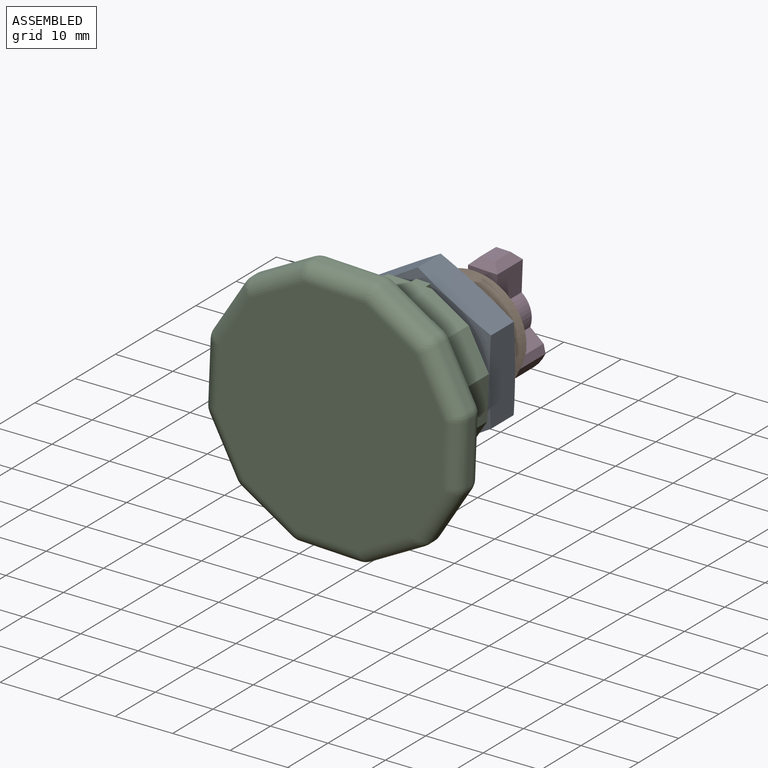
[diagram: assembled view]
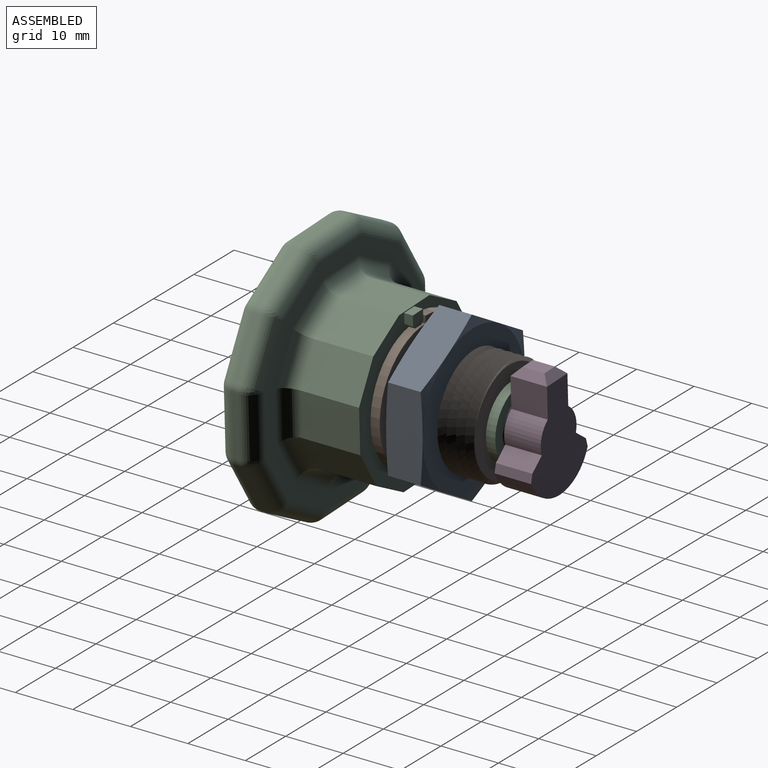
[diagram: assembled view, second angle]
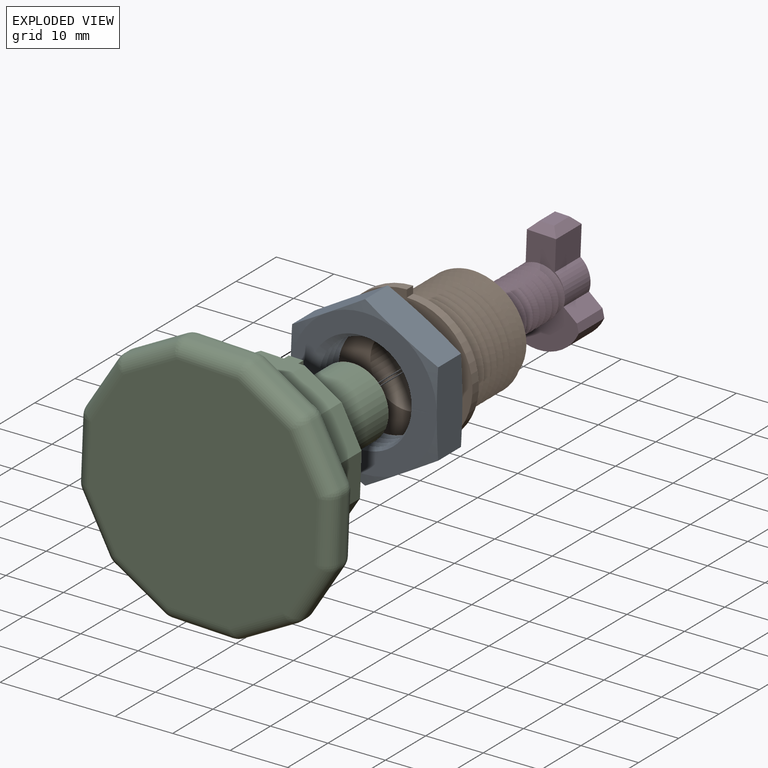
[diagram: exploded view]
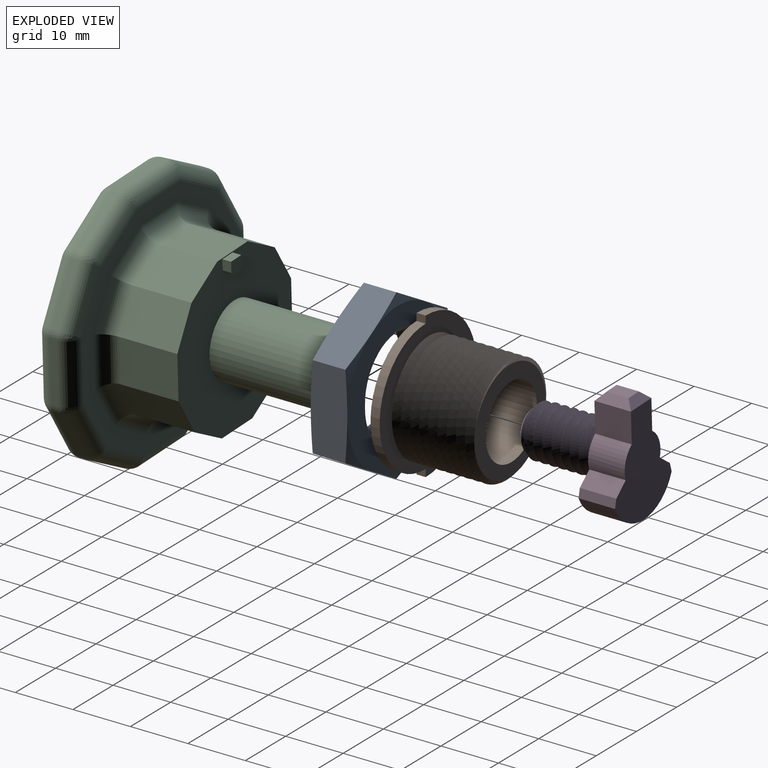
[diagram: exploded view, second angle]
ASSEMBLY  parts=4 mates=4
PART A: 23 faces, bbox 32.1x11.7x32.1 mm
  f0: cylinder r=8.29mm len=16.59mm, axis (0,1,0), area 7.3mm2, adj f1,f2,f21,f22
  f1: plane 28.13x28.13mm, normal (0,-1,0), area 253.5mm2, adj f0,f5,f6,f8,f10,f12,f14,f21
  f2: plane 25.4x25.4mm, normal (0,1,0), area 253.5mm2, adj f0,f3,f4,f7,f9,f11,f13,f21
  f3: cone r=17.23mm half-angle=80deg, axis (0,-1,0), area 14mm2, adj f2,f15,f20
  f4: cone r=17.23mm half-angle=80deg, axis (0,-1,0), area 14mm2, adj f2,f15,f16
  f5: cone r=17.23mm half-angle=80deg, axis (0,1,0), area 14mm2, adj f1,f15,f20
  f6: cone r=17.23mm half-angle=80deg, axis (0,1,0), area 14mm2, adj f1,f15,f16
  f7: cone r=17.23mm half-angle=80deg, axis (0,-1,0), area 14mm2, adj f2,f16,f17
  f8: cone r=17.23mm half-angle=80deg, axis (0,1,0), area 14mm2, adj f1,f16,f17
  f9: cone r=17.23mm half-angle=80deg, axis (0,-1,0), area 14mm2, adj f2,f17,f18
  f10: cone r=17.23mm half-angle=80deg, axis (0,1,0), area 14mm2, adj f1,f17,f18
  f11: cone r=17.23mm half-angle=80deg, axis (0,-1,0), area 14mm2, adj f2,f18,f19
  f12: cone r=17.23mm half-angle=80deg, axis (0,1,0), area 14mm2, adj f1,f18,f19
  f13: cone r=17.23mm half-angle=80deg, axis (0,-1,0), area 14mm2, adj f2,f19,f20
  f14: cone r=17.23mm half-angle=80deg, axis (0,1,0), area 14mm2, adj f1,f19,f20
  f15: plane 13.78x8.41mm, normal (0.5,0,0.87), area 89.6mm2, adj f3,f4,f5,f6,f16,f20
  f16: plane 15.74x7.43mm, normal (1,0,0), area 89.6mm2, adj f4,f6,f7,f8,f15,f17
  f17: plane 13.78x8.41mm, normal (0.5,0,-0.87), area 89.6mm2, adj f7,f8,f9,f10,f16,f18
  f18: plane 13.78x8.41mm, normal (-0.5,0,-0.87), area 89.6mm2, adj f9,f10,f11,f12,f17,f19
  f19: plane 15.74x7.43mm, normal (-1,0,0), area 89.6mm2, adj f11,f12,f13,f14,f18,f20
  f20: plane 13.78x8.41mm, normal (-0.5,0,0.87), area 89.6mm2, adj f3,f5,f13,f14,f15,f19
  f21: bspline ~19.51x19.51mm, area 286.6mm2, adj f0,f1,f2,f22
  f22: bspline ~19.51x19.51mm, area 355.2mm2, adj f0,f1,f2,f21
PART B: 12 faces, bbox 25.3x18.6x26.6 mm
  f0: cylinder r=6.35mm len=16.51mm, axis (0,-1,0), area 658.7mm2, adj f2,f10
  f1: cylinder r=9.53mm len=19.05mm, axis (0,-1,0), area 18mm2, adj f3,f4,f5,f11
  f2: plane 18.47x18.46mm, normal (0,1,0), area 118.3mm2, adj f0,f3,f4,f5
  f3: cone r=9.53mm half-angle=45deg, axis (0,-1,0), area 2.1mm2, adj f1,f2,f4,f5
  f4: bspline ~22x19.05mm, area 821.9mm2, adj f1,f2,f3,f5,f11
  f5: bspline ~22x19.05mm, area 823.2mm2, adj f1,f2,f3,f4,f11
  f6: cylinder r=11.43mm len=22.86mm, axis (0,1,0), area 57mm2, adj f7,f9,f10,f11
  f7: plane 1.59x1.27mm, normal (1,0,0), area 2mm2, adj f6,f8,f10,f11
  f8: cylinder r=12.7mm len=25.4mm, axis (0,1,0), area 63.3mm2, adj f7,f9,f10,f11
  f9: plane 1.59x1.27mm, normal (1,0,0), area 2mm2, adj f6,f8,f10,f11
  f10: plane 25.4x24.13mm, normal (0,-1,0), area 331.9mm2, adj f0,f6,f7,f8,f9
  f11: plane 26.55x25.28mm, normal (0,1,0), area 212.1mm2, adj f1,f4,f5,f6,f7,f8,f9
PART C: 114 faces, bbox 44.4x38.1x44.4 mm
  f0: cylinder r=3.17mm len=15.24mm, axis (0,-1,0), area 21mm2, adj f3,f4,f5,f6,f7
  f1: cylinder r=6.29mm len=18.1mm, axis (0,-1,0), area 714.8mm2, adj f2,f20
  f2: plane 12.58x12.58mm, normal (0,1,0), area 62mm2, adj f1,f3,f4,f5
  f3: cone r=4.45mm half-angle=45deg, axis (0,1,0), area 21.3mm2, adj f0,f2,f4,f5
  f4: bspline ~16.66x10.48mm, area 374.3mm2, adj f0,f2,f3,f5,f6
  f5: bspline ~16.66x10.48mm, area 356.8mm2, adj f0,f2,f3,f4,f6
  f6: plane 1.57x1.36mm, normal (0,0,1), area 1.1mm2, adj f0,f4,f5
  f7: plane 6.35x6.35mm, normal (0,1,0), area 31.7mm2, adj f0
  f8: plane 10.16x7.58mm, normal (1,0,0), area 77mm2, adj f9,f19,f20,f107
  f9: plane 10.16x6.56mm, normal (0.87,0,0.5), area 77mm2, adj f8,f10,f20,f105
  f10: plane 10.16x6.56mm, normal (0.5,0,0.87), area 77mm2, adj f9,f11,f20,f103
  f11: plane 10.16x7.58mm, normal (0,0,1), area 77mm2, adj f10,f12,f20,f101
  f12: plane 10.16x6.56mm, normal (-0.5,0,0.87), area 77mm2, adj f11,f13,f20,f100
  f13: plane 10.16x6.56mm, normal (-0.87,0,0.5), area 77mm2, adj f12,f14,f20,f102
  f14: plane 10.16x7.58mm, normal (-1,0,0), area 77mm2, adj f13,f15,f20,f104
  f15: plane 10.16x6.56mm, normal (-0.87,0,-0.5), area 77mm2, adj f14,f16,f20,f106
  f16: plane 10.16x6.56mm, normal (-0.5,0,-0.87), area 77mm2, adj f15,f17,f20,f108
  f17: plane 10.16x7.58mm, normal (0,0,-1), area 77mm2, adj f16,f18,f20,f110
  f18: plane 10.16x6.56mm, normal (0.5,0,-0.87), area 77mm2, adj f17,f19,f20,f111
  f19: plane 10.16x6.56mm, normal (0.87,0,-0.5), area 77mm2, adj f8,f18,f20,f109
  f20: plane 28.27x28.27mm, normal (0,1,0), area 512.9mm2, adj f1,f8,f9,f10,f11,f12,f13,f14
  f21: plane 1.78x1.52mm, normal (-1,0,0), area 2.7mm2, adj f20,f22,f25,f113
  f22: plane 2.54x1.52mm, normal (0,0,1), area 3.9mm2, adj f20,f21,f23,f25
  f23: plane 1.78x1.52mm, normal (1,0,0), area 2.7mm2, adj f20,f22,f25,f112
  f24: plane 1.52x1.52mm, normal (0,0,-1), area 2.3mm2, adj f20,f25,f112,f113
  f25: plane 2.54x2.29mm, normal (0,1,0), area 5.5mm2, adj f21,f22,f23,f24,f112,f113
  f26: plane 10.54x1.27mm, normal (1,0,0), area 13.4mm2, adj f88,f93,f96,f99
  f27: plane 9.13x5.27mm, normal (0.87,0,0.5), area 13.4mm2, adj f85,f94,f95,f99
  f28: plane 9.13x5.27mm, normal (0.5,0,0.87), area 13.4mm2, adj f75,f84,f85,f86
  f29: plane 10.54x1.27mm, normal (0,0,1), area 13.4mm2, adj f65,f74,f75,f76
  f30: plane 9.13x5.27mm, normal (-0.5,0,0.87), area 13.4mm2, adj f55,f64,f65,f66
  f31: plane 9.13x5.27mm, normal (-0.87,0,0.5), area 13.4mm2, adj f45,f54,f55,f56
  f32: plane 10.54x1.27mm, normal (-1,0,0), area 13.4mm2, adj f40,f44,f45,f46
  f33: plane 9.13x5.27mm, normal (-0.87,0,-0.5), area 13.4mm2, adj f40,f43,f47,f48
  f34: plane 9.13x5.27mm, normal (-0.5,0,-0.87), area 13.4mm2, adj f48,f53,f57,f58
  f35: plane 10.54x1.27mm, normal (0,0,-1), area 13.4mm2, adj f58,f63,f67,f68
  f36: plane 9.13x5.27mm, normal (0.5,0,-0.87), area 13.4mm2, adj f68,f73,f77,f78
  f37: plane 9.13x5.27mm, normal (0.87,0,-0.5), area 13.4mm2, adj f78,f83,f87,f88
  f38: plane 39.34x39.34mm, normal (0,-1,0), area 1243.8mm2, adj f43,f44,f53,f54,f63,f64,f73,f74
  f39: plane 39.34x39.34mm, normal (0,1,0), area 349.6mm2, adj f46,f47,f56,f57,f66,f67,f76,f77
  f40: cylinder r=2.54mm len=1.27mm, axis (0,1,0), area 1.7mm2, adj f32,f33,f41,f42
  f41: sphere r=2.54mm, area 2.6mm2, adj f40,f43,f44
  f42: sphere r=2.54mm, area 2.6mm2, adj f40,f46,f47
  f43: cylinder r=2.54mm len=10.4mm, axis (-0.5,0,0.87), area 42.1mm2, adj f33,f38,f41,f49
  f44: cylinder r=2.54mm len=10.54mm, axis (0,0,1), area 42.1mm2, adj f32,f38,f41,f50
  f45: cylinder r=2.54mm len=1.27mm, axis (0,1,0), area 1.7mm2, adj f31,f32,f50,f51
  f46: cylinder r=2.54mm len=10.54mm, axis (0,0,-1), area 42.1mm2, adj f32,f39,f42,f51
  f47: cylinder r=2.54mm len=10.4mm, axis (0.5,0,-0.87), area 42.1mm2, adj f33,f39,f42,f52
  f48: cylinder r=2.54mm len=1.27mm, axis (0,1,0), area 1.7mm2, adj f33,f34,f49,f52
  f49: sphere r=2.54mm, area 4.2mm2, adj f43,f48,f53
  f50: sphere r=2.54mm, area 2.6mm2, adj f44,f45,f54
  f51: sphere r=2.54mm, area 2.6mm2, adj f45,f46,f56
  f52: sphere r=2.54mm, area 4.2mm2, adj f47,f48,f57
  f53: cylinder r=2.54mm len=10.4mm, axis (-0.87,0,0.5), area 42.1mm2, adj f34,f38,f49,f59
  f54: cylinder r=2.54mm len=10.4mm, axis (0.5,0,0.87), area 42.1mm2, adj f31,f38,f50,f60
  f55: cylinder r=2.54mm len=1.27mm, axis (0,1,0), area 1.7mm2, adj f30,f31,f60,f61
  f56: cylinder r=2.54mm len=10.4mm, axis (-0.5,0,-0.87), area 42.1mm2, adj f31,f39,f51,f61
  f57: cylinder r=2.54mm len=10.4mm, axis (0.87,0,-0.5), area 42.1mm2, adj f34,f39,f52,f62
  f58: cylinder r=2.54mm len=1.27mm, axis (0,1,0), area 1.7mm2, adj f34,f35,f59,f62
  f59: sphere r=2.54mm, area 3.4mm2, adj f53,f58,f63
  f60: sphere r=2.54mm, area 4.2mm2, adj f54,f55,f64
  f61: sphere r=2.54mm, area 4.2mm2, adj f55,f56,f66
  f62: sphere r=2.54mm, area 3.4mm2, adj f57,f58,f67
  f63: cylinder r=2.54mm len=10.54mm, axis (-1,0,0), area 42.1mm2, adj f35,f38,f59,f69
  f64: cylinder r=2.54mm len=10.4mm, axis (0.87,0,0.5), area 42.1mm2, adj f30,f38,f60,f70
  f65: cylinder r=2.54mm len=1.27mm, axis (0,1,0), area 1.7mm2, adj f29,f30,f70,f71
  f66: cylinder r=2.54mm len=10.4mm, axis (-0.87,0,-0.5), area 42.1mm2, adj f30,f39,f61,f71
  f67: cylinder r=2.54mm len=10.54mm, axis (1,0,0), area 42.1mm2, adj f35,f39,f62,f72
  f68: cylinder r=2.54mm len=1.27mm, axis (0,1,0), area 1.7mm2, adj f35,f36,f69,f72
  f69: sphere r=2.54mm, area 3.4mm2, adj f63,f68,f73
  f70: sphere r=2.54mm, area 3.4mm2, adj f64,f65,f74
  f71: sphere r=2.54mm, area 3.4mm2, adj f65,f66,f76
  f72: sphere r=2.54mm, area 3.4mm2, adj f67,f68,f77
  f73: cylinder r=2.54mm len=10.4mm, axis (-0.87,0,-0.5), area 42.1mm2, adj f36,f38,f69,f79
  f74: cylinder r=2.54mm len=10.54mm, axis (1,0,0), area 42.1mm2, adj f29,f38,f70,f80
  f75: cylinder r=2.54mm len=1.27mm, axis (0,1,0), area 1.7mm2, adj f28,f29,f80,f81
  f76: cylinder r=2.54mm len=10.54mm, axis (-1,0,0), area 42.1mm2, adj f29,f39,f71,f81
  f77: cylinder r=2.54mm len=10.4mm, axis (0.87,0,0.5), area 42.1mm2, adj f36,f39,f72,f82
  f78: cylinder r=2.54mm len=1.27mm, axis (0,1,0), area 1.7mm2, adj f36,f37,f79,f82
  f79: sphere r=2.54mm, area 4.2mm2, adj f73,f78,f83
  f80: sphere r=2.54mm, area 3.4mm2, adj f74,f75,f84
  f81: sphere r=2.54mm, area 3.4mm2, adj f75,f76,f86
  f82: sphere r=2.54mm, area 4.2mm2, adj f77,f78,f87
  f83: cylinder r=2.54mm len=10.4mm, axis (-0.5,0,-0.87), area 42.1mm2, adj f37,f38,f79,f89
  f84: cylinder r=2.54mm len=10.4mm, axis (0.87,0,-0.5), area 42.1mm2, adj f28,f38,f80,f90
  f85: cylinder r=2.54mm len=1.27mm, axis (0,1,0), area 1.7mm2, adj f27,f28,f90,f91
  f86: cylinder r=2.54mm len=10.4mm, axis (-0.87,0,0.5), area 42.1mm2, adj f28,f39,f81,f91
  f87: cylinder r=2.54mm len=10.4mm, axis (0.5,0,0.87), area 42.1mm2, adj f37,f39,f82,f92
  f88: cylinder r=2.54mm len=1.27mm, axis (0,1,0), area 1.7mm2, adj f26,f37,f89,f92
  f89: sphere r=2.54mm, area 3.4mm2, adj f83,f88,f93
  f90: sphere r=2.54mm, area 3.4mm2, adj f84,f85,f94
  f91: sphere r=2.54mm, area 4.2mm2, adj f85,f86,f95
  f92: sphere r=2.54mm, area 2.6mm2, adj f87,f88,f96
  f93: cylinder r=2.54mm len=10.54mm, axis (0,0,-1), area 42.1mm2, adj f26,f38,f89,f97
  f94: cylinder r=2.54mm len=10.4mm, axis (0.5,0,-0.87), area 42.1mm2, adj f27,f38,f90,f97
  f95: cylinder r=2.54mm len=10.4mm, axis (-0.5,0,0.87), area 42.1mm2, adj f27,f39,f91,f98
  f96: cylinder r=2.54mm len=10.54mm, axis (0,0,1), area 42.1mm2, adj f26,f39,f92,f98
  f97: sphere r=2.54mm, area 3.4mm2, adj f93,f94,f99
  f98: sphere r=2.54mm, area 2.6mm2, adj f95,f96,f99
  f99: cylinder r=2.54mm len=1.27mm, axis (0,1,0), area 1.7mm2, adj f26,f27,f97,f98
  f100: cylinder r=2.54mm len=9.01mm, axis (0.87,0,0.5), area 32.9mm2, adj f12,f39,f101,f102
  f101: cylinder r=2.54mm len=8.94mm, axis (1,0,0), area 32.9mm2, adj f11,f39,f100,f103
  f102: cylinder r=2.54mm len=9.01mm, axis (0.5,0,0.87), area 32.9mm2, adj f13,f39,f100,f104
  f103: cylinder r=2.54mm len=9.01mm, axis (0.87,0,-0.5), area 32.9mm2, adj f10,f39,f101,f105
  f104: cylinder r=2.54mm len=8.94mm, axis (0,0,1), area 32.9mm2, adj f14,f39,f102,f106
  f105: cylinder r=2.54mm len=9.01mm, axis (0.5,0,-0.87), area 32.9mm2, adj f9,f39,f103,f107
  f106: cylinder r=2.54mm len=9.01mm, axis (-0.5,0,0.87), area 32.9mm2, adj f15,f39,f104,f108
  f107: cylinder r=2.54mm len=8.94mm, axis (0,0,-1), area 32.9mm2, adj f8,f39,f105,f109
  f108: cylinder r=2.54mm len=9.01mm, axis (-0.87,0,0.5), area 32.9mm2, adj f16,f39,f106,f110
  f109: cylinder r=2.54mm len=9.01mm, axis (-0.5,0,-0.87), area 32.9mm2, adj f19,f39,f107,f111
  f110: cylinder r=2.54mm len=8.94mm, axis (-1,0,0), area 32.9mm2, adj f17,f39,f108,f111
  f111: cylinder r=2.54mm len=9.01mm, axis (-0.87,0,-0.5), area 32.9mm2, adj f18,f39,f109,f110
  f112: plane 1.52x0.51mm, normal (0.71,0,-0.71), area 1.1mm2, adj f20,f23,f24,f25
  f113: plane 1.52x0.51mm, normal (-0.71,0,-0.71), area 1.1mm2, adj f20,f21,f24,f25
PART D: 20 faces, bbox 14.1x19.9x19.6 mm
  f0: cylinder r=4.45mm len=17.78mm, axis (0,1,0), area 13.3mm2, adj f2,f3,f4,f5,f7,f8,f12
  f1: plane 6.37x6.31mm, normal (0,-1,0), area 31.6mm2, adj f2,f3,f4
  f2: cone r=3.17mm half-angle=45deg, axis (0,1,0), area 19.1mm2, adj f0,f1,f3,f4
  f3: bspline ~14.28x10.27mm, area 284.6mm2, adj f0,f1,f2,f4,f5
  f4: bspline ~14.02x10.27mm, area 281.1mm2, adj f0,f1,f2,f3,f5
  f5: plane 18.32x14.07mm, normal (0,-1,0), area 110.3mm2, adj f0,f3,f4,f6,f8,f9,f10,f11
  f6: cylinder r=4.45mm len=6.35mm, axis (0,-1,0), area 35.8mm2, adj f5,f7,f9,f11
  f7: plane 18.32x14.07mm, normal (0,1,0), area 155.5mm2, adj f0,f6,f8,f9,f10,f11,f12,f14
  f8: plane 6.35x2.41mm, normal (0.62,0,0.78), area 19.5mm2, adj f0,f5,f7,f18
  f9: plane 6.35x2.41mm, normal (-0.62,0,0.78), area 19.5mm2, adj f5,f6,f7,f19
  f10: cylinder r=7.62mm len=14.07mm, axis (0,-1,0), area 113.8mm2, adj f5,f7,f18,f19
  f11: plane 6.35x5.24mm, normal (-1,0,0), area 33.3mm2, adj f5,f6,f7,f16
  f12: plane 6.35x5.24mm, normal (1,0,0), area 33.3mm2, adj f0,f5,f7,f15
  f13: plane 3.81x2.54mm, normal (0,0,1), area 9.7mm2, adj f14,f15,f16,f17
  f14: plane 5.08x1.27mm, normal (0,0.71,0.71), area 6.8mm2, adj f7,f13,f15,f16
  f15: plane 6.35x1.27mm, normal (0.71,0,0.71), area 9.1mm2, adj f12,f13,f14,f17
  f16: plane 6.35x1.27mm, normal (-0.71,0,0.71), area 9.1mm2, adj f11,f13,f14,f17
  f17: plane 5.08x1.27mm, normal (0,-0.71,0.71), area 6.8mm2, adj f5,f13,f15,f16
  f18: plane 6.35x1.48mm, normal (0.97,0,0.25), area 9.7mm2, adj f5,f7,f8,f10
  f19: plane 6.35x1.48mm, normal (-0.97,0,0.25), area 9.7mm2, adj f5,f7,f9,f10
PLACE A t=(-24.47,-2.43,-15.68)mm
PLACE B t=(-23.91,-10.39,-15.7)mm fixed
PLACE C rot(axis=(0,1,0),2.3deg) t=(-23.91,-10.39,-15.7)mm
PLACE D rot(axis=(0,1,0),2.3deg) t=(-23.92,6.37,-15.7)mm
MATE fastened C.f1 <-> D.f0  axis (0,1,0) through (-23.91,6.12,-15.7)mm
MATE slider B.f0 <-> A.f1  axis (0,-1,0) through (-23.91,-11.98,-15.7)mm
MATE planar C.f20 <-> B.f10  axis (0,1,0) through (-23.93,-11.98,-15.84)mm
MATE cylindrical C.f1 <-> B.f0  axis (0,-1,0) through (-23.91,-2.93,-15.7)mm
